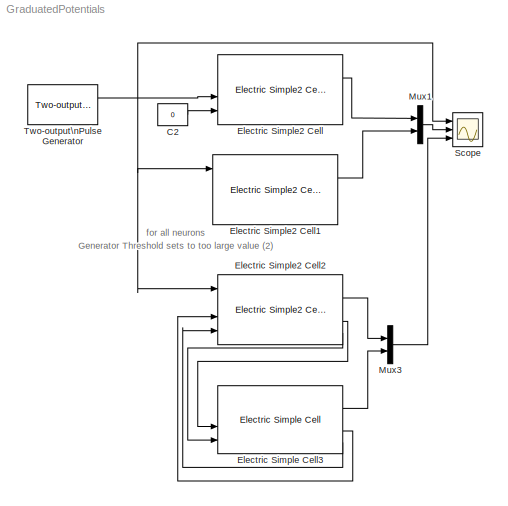
MODEL GraduatedPotentials
KIND model
BLOCK [Constant] C2
  SID = 1
  Value = 0
BLOCK [Reference] Electric Simple Cell3  REF=NeuroModelerLibrary/Simple Cells/Electric Simple Cell
  AllowZeroVariantControls = off
  AutoFrameSizeCalculation = off
  Latency = 0
  NameLocation = top
  Ports = [4, 5]
  PropagateVariantConditions = off
  RTWMemSecDataConstants = Inherit from model
  RTWMemSecDataInternal = Inherit from model
  RTWMemSecDataParameters = Inherit from model
  RTWMemSecFuncExecute = Inherit from model
  RTWMemSecFuncInitTerm = Inherit from model
  SID = 2
  ShowPortLabels = FromPortIcon
  SourceBlock = NeuroModelerLibrary/Simple Cells/Electric Simple Cell
  SourceType = SubSystem
  SystemSampleTime = -1
  VariantActivationTime = update diagram
BLOCK [Reference] Electric Simple2 Cell  REF=NeuroModelerLibrary/Simple Cells/Electric Simple2 Cell
  AllowZeroVariantControls = off
  AutoFrameSizeCalculation = off
  Latency = 0
  NameLocation = top
  Ports = [4, 5]
  PropagateVariantConditions = off
  RTWMemSecDataConstants = Inherit from model
  RTWMemSecDataInternal = Inherit from model
  RTWMemSecDataParameters = Inherit from model
  RTWMemSecFuncExecute = Inherit from model
  RTWMemSecFuncInitTerm = Inherit from model
  SID = 3
  ShowPortLabels = FromPortIcon
  SourceBlock = NeuroModelerLibrary/Simple Cells/Electric Simple2 Cell
  SourceType = SubSystem
  SystemSampleTime = -1
  VariantActivationTime = update diagram
BLOCK [Reference] Electric Simple2 Cell1  REF=NeuroModelerLibrary/Simple Cells/Electric Simple2 Cell
  AllowZeroVariantControls = off
  AutoFrameSizeCalculation = off
  Latency = 0
  NameLocation = top
  Ports = [4, 5]
  PropagateVariantConditions = off
  RTWMemSecDataConstants = Inherit from model
  RTWMemSecDataInternal = Inherit from model
  RTWMemSecDataParameters = Inherit from model
  RTWMemSecFuncExecute = Inherit from model
  RTWMemSecFuncInitTerm = Inherit from model
  SID = 4
  ShowPortLabels = FromPortIcon
  SourceBlock = NeuroModelerLibrary/Simple Cells/Electric Simple2 Cell
  SourceType = SubSystem
  SystemSampleTime = -1
  VariantActivationTime = update diagram
BLOCK [Reference] Electric Simple2 Cell2  REF=NeuroModelerLibrary/Simple Cells/Electric Simple2 Cell
  AllowZeroVariantControls = off
  AutoFrameSizeCalculation = off
  Latency = 0
  NameLocation = top
  Ports = [4, 5]
  PropagateVariantConditions = off
  RTWMemSecDataConstants = Inherit from model
  RTWMemSecDataInternal = Inherit from model
  RTWMemSecDataParameters = Inherit from model
  RTWMemSecFuncExecute = Inherit from model
  RTWMemSecFuncInitTerm = Inherit from model
  SID = 5
  ShowPortLabels = FromPortIcon
  SourceBlock = NeuroModelerLibrary/Simple Cells/Electric Simple2 Cell
  SourceType = SubSystem
  SystemSampleTime = -1
  VariantActivationTime = update diagram
BLOCK [Mux] Mux1
  DisplayOption = bar
  Inputs = 2
  Ports = [2, 1]
  SID = 6
BLOCK [Mux] Mux3
  DisplayOption = bar
  Inputs = 2
  Ports = [2, 1]
  SID = 7
BLOCK [Scope] Scope
  Floating = off
  NumInputPorts = 3
  Ports = [3]
  SID = 8
  ScopeSpecificationString = Simulink.scopes.TimeScopeBlockCfg('CurrentConfiguration', extmgr.ConfigurationSet(extmgr.Configuration('Core','General UI',true),extmgr.Configuration('Core','Source UI',true),extmgr.Configuration('Sources','WiredSimulink',true,'DataLoggingSaveFormat','StructureWithTime','DataLoggingLimitDataPoints',true,'DataLoggingDecimation','1','DataLoggingDecimateData',true),extmgr.Configuration('Visuals','Tim...<+3138ch>
BLOCK [Reference] Two-output\nPulse Generator  REF=NeuroModelerLibrary/Support/Two-output\nPulse Generator
  A = 1
  OOff1 = 0.8
  OOff2 = 0.8
  OOn1 = 0.2
  OOn2 = 0.2
  P1 = 50
  P2 = 50
  PW = 1
  Ports = [0, 2]
  RTWMemSecDataConstants = Inherit from model
  RTWMemSecDataInternal = Inherit from model
  RTWMemSecDataParameters = Inherit from model
  RTWMemSecFuncExecute = Inherit from model
  RTWMemSecFuncInitTerm = Inherit from model
  SID = 9
  ST = 0.001
  SourceBlock = NeuroModelerLibrary/Support/Two-output\nPulse Generator
ANNOTATION (root): Generator Threshold sets to too large value (2)\nfor all neurons
LINE C2:1 -> Electric Simple2 Cell:4
LINE Electric Simple Cell3:2 -> Mux3:2
LINE Electric Simple Cell3:4 -> Electric Simple2 Cell2:3
LINE Electric Simple Cell3:5 -> Electric Simple2 Cell2:4
LINE Electric Simple2 Cell1:2 -> Mux1:2
LINE Electric Simple2 Cell2:2 -> Mux3:1
LINE Electric Simple2 Cell2:4 -> Electric Simple Cell3:3
LINE Electric Simple2 Cell2:5 -> Electric Simple Cell3:4
LINE Electric Simple2 Cell:2 -> Mux1:1
LINE Mux1:1 -> Scope:2
LINE Mux3:1 -> Scope:3
NET Two-output\nPulse Generator:1 -> Electric Simple2 Cell1:1, Electric Simple2 Cell2:1, Electric Simple2 Cell:3, Scope:1
note: NET lines group one-source signal fan-out (src -> all destinations, sorted); 1:1 wires keep LINE
